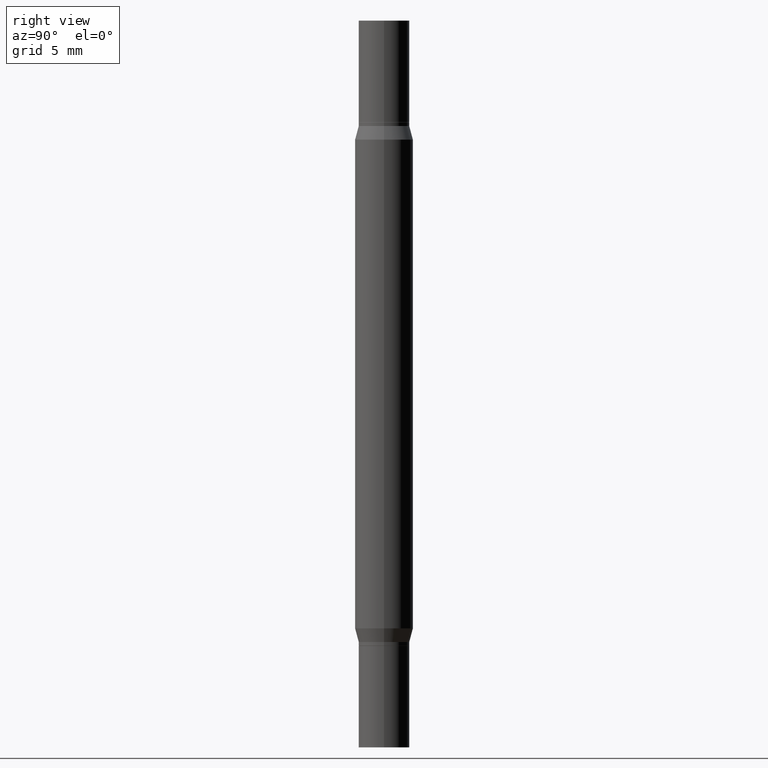
[diagram: clean part render]
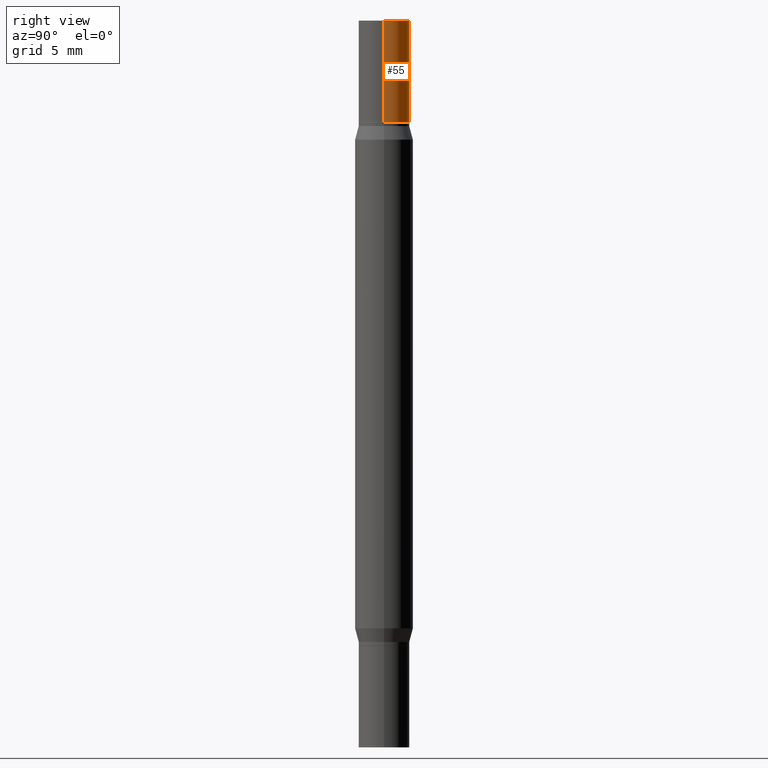
[diagram: same view with one face highlighted and labeled with its STEP entity id]
A machine part, right view. The second image highlights one B-rep face of the part: STEP entity #55.
In plain terms, the highlighted cylindrical surface (edge-blend (fillet) strip) has radius 1.7501 mm, axis along (-0, -0, -1).
Its self-contained STEP definition (entity closure, byte-faithful):
#4 = AXIS2_PLACEMENT_3D ( 'NONE', #265, #968, #556 ) ;
#24 = FACE_OUTER_BOUND ( 'NONE', #781, .T. ) ;
#27 = DIRECTION ( 'NONE',  ( 1.000000000000000000, -6.982962677686265922E-15, 0.000000000000000000 ) ) ;
#50 = EDGE_CURVE ( 'NONE', #647, #98, #605, .T. ) ;
#55 = ADVANCED_FACE ( 'NONE', ( #24 ), #478, .T. ) ;
#98 = VERTEX_POINT ( 'NONE', #183 ) ;
#144 = ORIENTED_EDGE ( 'NONE', *, *, #213, .T. ) ;
#150 = VERTEX_POINT ( 'NONE', #541 ) ;
#152 = AXIS2_PLACEMENT_3D ( 'NONE', #178, #717, #953 ) ;
#154 = VECTOR ( 'NONE', #362, 39.37007874015748143 ) ;
#178 = CARTESIAN_POINT ( 'NONE',  ( 0.000000000000000000, -6.873299672471851415E-15, -1.968499999999999694 ) ) ;
#183 = CARTESIAN_POINT ( 'NONE',  ( -0.06890000000000007230, -8.163773080062737161E-18, -0.2755999999999999006 ) ) ;
#211 = CARTESIAN_POINT ( 'NONE',  ( 0.06890000000000007230, -7.354425800964435942E-15, -1.968499999999999694 ) ) ;
#212 = ORIENTED_EDGE ( 'NONE', *, *, #364, .T. ) ;
#213 = EDGE_CURVE ( 'NONE', #150, #98, #240, .T. ) ;
#239 = VERTEX_POINT ( 'NONE', #723 ) ;
#240 = CIRCLE ( 'NONE', #4, 0.06890000000000007230 ) ;
#265 = CARTESIAN_POINT ( 'NONE',  ( 4.139934141990817236E-29, -9.620228272121656440E-16, -0.2755999999999999006 ) ) ;
#328 = AXIS2_PLACEMENT_3D ( 'NONE', #567, #929, #27 ) ;
#333 = ORIENTED_EDGE ( 'NONE', *, *, #50, .F. ) ;
#351 = EDGE_CURVE ( 'NONE', #239, #647, #674, .T. ) ;
#362 = DIRECTION ( 'NONE',  ( -2.445468806185136877E-29, -3.491805094961123683E-15, -1.000000000000000000 ) ) ;
#364 = EDGE_CURVE ( 'NONE', #239, #150, #922, .T. ) ;
#460 = CARTESIAN_POINT ( 'NONE',  ( -0.06890000000000007230, -6.400611360425392691E-15, -1.968499999999999694 ) ) ;
#478 = CYLINDRICAL_SURFACE ( 'NONE', #152, 0.06890000000000007230 ) ;
#541 = CARTESIAN_POINT ( 'NONE',  ( 0.06890000000000007230, -1.443148955704749777E-15, -0.2755999999999999006 ) ) ;
#556 = DIRECTION ( 'NONE',  ( 1.000000000000000000, -6.982962677686265922E-15, 0.000000000000000000 ) ) ;
#567 = CARTESIAN_POINT ( 'NONE',  ( 4.813905344975441835E-29, 3.186569591213228268E-19, 2.731847993664263218E-16 ) ) ;
#605 = LINE ( 'NONE', #460, #827 ) ;
#647 = VERTEX_POINT ( 'NONE', #797 ) ;
#674 = CIRCLE ( 'NONE', #328, 0.06890000000000007230 ) ;
#717 = DIRECTION ( 'NONE',  ( -2.445468806185136597E-29, -3.491805094961124077E-15, -1.000000000000000000 ) ) ;
#723 = CARTESIAN_POINT ( 'NONE',  ( 0.06890000000000007230, -4.808074715334629460E-16, 2.731847993664263218E-16 ) ) ;
#779 = ORIENTED_EDGE ( 'NONE', *, *, #351, .F. ) ;
#781 = EDGE_LOOP ( 'NONE', ( #333, #779, #212, #144 ) ) ;
#797 = CARTESIAN_POINT ( 'NONE',  ( -0.06890000000000007230, -8.163773080062677072E-18, 2.731847993664279982E-16 ) ) ;
#827 = VECTOR ( 'NONE', #932, 39.37007874015748143 ) ;
#922 = LINE ( 'NONE', #211, #154 ) ;
#929 = DIRECTION ( 'NONE',  ( 2.445468806185136597E-29, 3.491805094961124077E-15, 1.000000000000000000 ) ) ;
#932 = DIRECTION ( 'NONE',  ( -2.445468806185136877E-29, -3.491805094961123683E-15, -1.000000000000000000 ) ) ;
#953 = DIRECTION ( 'NONE',  ( 1.000000000000000000, -6.982962677686258822E-15, 0.000000000000000000 ) ) ;
#968 = DIRECTION ( 'NONE',  ( 2.445468806185136597E-29, 3.491805094961124077E-15, 1.000000000000000000 ) ) ;